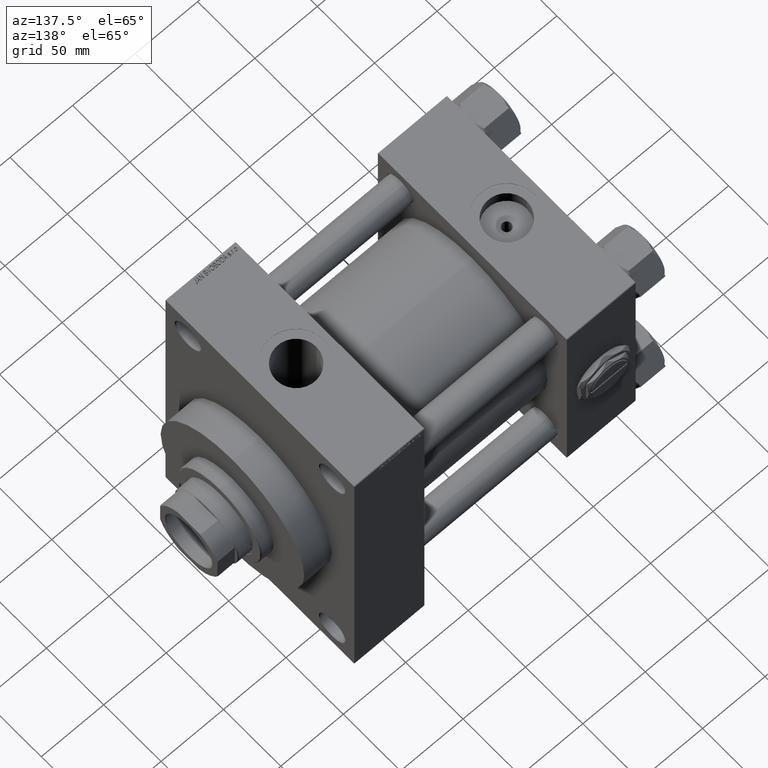
[diagram: clean part render]
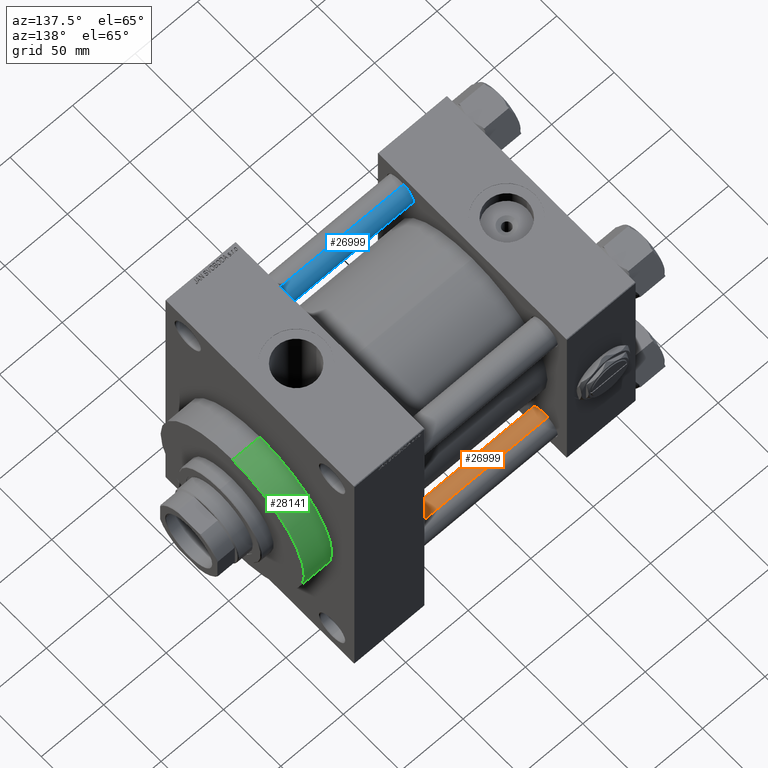
[diagram: same view with three faces highlighted in distinct colors, each labeled with its STEP entity id]
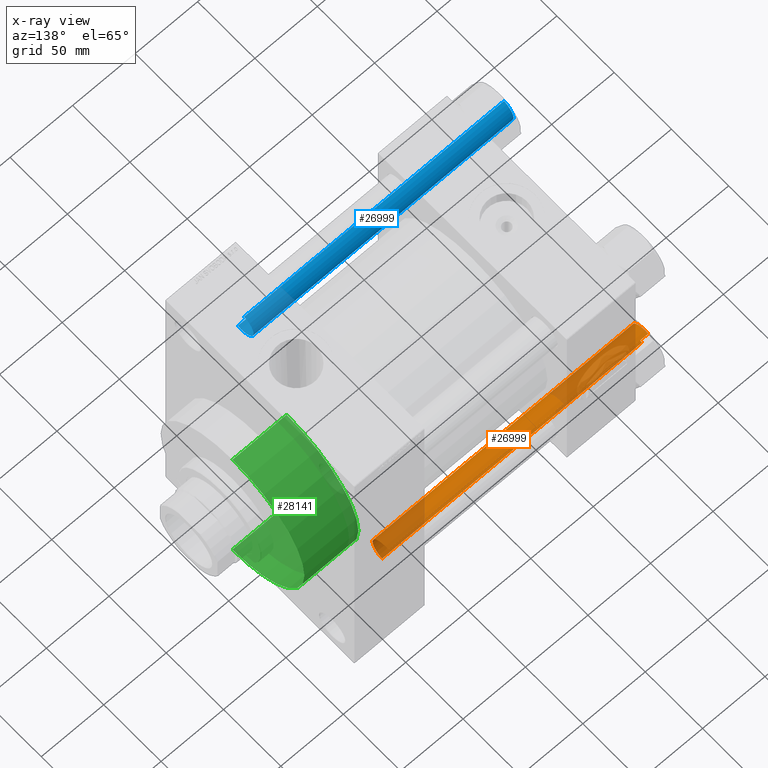
[diagram: x-ray of the same camera — body ghosted, the three highlighted faces saturated]
A machine part, auxiliary view with three faces highlighted in distinct colors.
The next image is the same camera in x-ray (body ghosted, the three faces saturated) — at least one of them is partly hidden behind the body in this view.
Their STEP definitions:

[orange] entity #26999 — the highlighted cylindrical surface (edge-blend (fillet) strip) has radius 11 mm, axis along (1, -0, 0).
#1297 = DIRECTION ( 'NONE',  ( -1.000000000000000000, 0.000000000000000000, 0.000000000000000000 ) ) ;
#5041 = CYLINDRICAL_SURFACE ( 'NONE', #41218, 11.00000000000000000 ) ;
#5774 = FACE_OUTER_BOUND ( 'NONE', #44086, .T. ) ;
#8872 = CARTESIAN_POINT ( 'NONE',  ( -11.00000000000000000, 0.000000000000000000, 209.0000000000000000 ) ) ;
#10002 = ORIENTED_EDGE ( 'NONE', *, *, #19165, .T. ) ;
#12109 = CIRCLE ( 'NONE', #16919, 11.00000000000000000 ) ;
#14855 = CARTESIAN_POINT ( 'NONE',  ( -11.00000000000000000, 0.000000000000000000, 0.5000000000000004441 ) ) ;
#16528 = ORIENTED_EDGE ( 'NONE', *, *, #24535, .T. ) ;
#16919 = AXIS2_PLACEMENT_3D ( 'NONE', #43043, #24028, #39298 ) ;
#17346 = VERTEX_POINT ( 'NONE', #47105 ) ;
#17841 = LINE ( 'NONE', #33110, #47646 ) ;
#17930 = CIRCLE ( 'NONE', #24305, 11.00000000000000000 ) ;
#19165 = EDGE_CURVE ( 'NONE', #27539, #45116, #27899, .T. ) ;
#20313 = CARTESIAN_POINT ( 'NONE',  ( 0.000000000000000000, 0.000000000000000000, 209.0000000000000000 ) ) ;
#20609 = DIRECTION ( 'NONE',  ( 1.000000000000000000, 0.000000000000000000, 0.000000000000000000 ) ) ;
#20726 = CARTESIAN_POINT ( 'NONE',  ( -11.00000000000000000, 0.000000000000000000, 208.5000000000000000 ) ) ;
#21099 = DIRECTION ( 'NONE',  ( -0.000000000000000000, -0.000000000000000000, -1.000000000000000000 ) ) ;
#24028 = DIRECTION ( 'NONE',  ( 0.000000000000000000, 0.000000000000000000, -1.000000000000000000 ) ) ;
#24141 = DIRECTION ( 'NONE',  ( -0.000000000000000000, -0.000000000000000000, -1.000000000000000000 ) ) ;
#24305 = AXIS2_PLACEMENT_3D ( 'NONE', #40619, #39884, #20609 ) ;
#24535 = EDGE_CURVE ( 'NONE', #45116, #17346, #17930, .T. ) ;
#26231 = VECTOR ( 'NONE', #24141, 1000.000000000000000 ) ;
#26298 = CARTESIAN_POINT ( 'NONE',  ( 11.00000000000000000, 1.347111479062088405E-15, 208.5000000000000000 ) ) ;
#26999 = ADVANCED_FACE ( 'NONE', ( #5774 ), #5041, .T. ) ;
#27539 = VERTEX_POINT ( 'NONE', #20726 ) ;
#27899 = LINE ( 'NONE', #8872, #26231 ) ;
#28584 = ORIENTED_EDGE ( 'NONE', *, *, #30850, .F. ) ;
#30850 = EDGE_CURVE ( 'NONE', #48364, #17346, #17841, .T. ) ;
#33110 = CARTESIAN_POINT ( 'NONE',  ( 11.00000000000000000, 1.347111479062088405E-15, 209.0000000000000000 ) ) ;
#38903 = ORIENTED_EDGE ( 'NONE', *, *, #48514, .T. ) ;
#39298 = DIRECTION ( 'NONE',  ( 1.000000000000000000, 0.000000000000000000, 0.000000000000000000 ) ) ;
#39884 = DIRECTION ( 'NONE',  ( -0.000000000000000000, -0.000000000000000000, 1.000000000000000000 ) ) ;
#40619 = CARTESIAN_POINT ( 'NONE',  ( 0.000000000000000000, 0.000000000000000000, 0.5000000000000004441 ) ) ;
#41218 = AXIS2_PLACEMENT_3D ( 'NONE', #20313, #43579, #1297 ) ;
#43043 = CARTESIAN_POINT ( 'NONE',  ( 0.000000000000000000, 0.000000000000000000, 208.5000000000000000 ) ) ;
#43579 = DIRECTION ( 'NONE',  ( -0.000000000000000000, -0.000000000000000000, -1.000000000000000000 ) ) ;
#44086 = EDGE_LOOP ( 'NONE', ( #28584, #38903, #10002, #16528 ) ) ;
#45116 = VERTEX_POINT ( 'NONE', #14855 ) ;
#47105 = CARTESIAN_POINT ( 'NONE',  ( 11.00000000000000000, 1.347111479062088405E-15, 0.5000000000000004441 ) ) ;
#47646 = VECTOR ( 'NONE', #21099, 1000.000000000000000 ) ;
#48364 = VERTEX_POINT ( 'NONE', #26298 ) ;
#48514 = EDGE_CURVE ( 'NONE', #48364, #27539, #12109, .T. ) ;

[blue] entity #26999 — the highlighted cylindrical surface (edge-blend (fillet) strip) has radius 11 mm, axis along (1, 0, 0).
#1297 = DIRECTION ( 'NONE',  ( -1.000000000000000000, 0.000000000000000000, 0.000000000000000000 ) ) ;
#5041 = CYLINDRICAL_SURFACE ( 'NONE', #41218, 11.00000000000000000 ) ;
#5774 = FACE_OUTER_BOUND ( 'NONE', #44086, .T. ) ;
#8872 = CARTESIAN_POINT ( 'NONE',  ( -11.00000000000000000, 0.000000000000000000, 209.0000000000000000 ) ) ;
#10002 = ORIENTED_EDGE ( 'NONE', *, *, #19165, .T. ) ;
#12109 = CIRCLE ( 'NONE', #16919, 11.00000000000000000 ) ;
#14855 = CARTESIAN_POINT ( 'NONE',  ( -11.00000000000000000, 0.000000000000000000, 0.5000000000000004441 ) ) ;
#16528 = ORIENTED_EDGE ( 'NONE', *, *, #24535, .T. ) ;
#16919 = AXIS2_PLACEMENT_3D ( 'NONE', #43043, #24028, #39298 ) ;
#17346 = VERTEX_POINT ( 'NONE', #47105 ) ;
#17841 = LINE ( 'NONE', #33110, #47646 ) ;
#17930 = CIRCLE ( 'NONE', #24305, 11.00000000000000000 ) ;
#19165 = EDGE_CURVE ( 'NONE', #27539, #45116, #27899, .T. ) ;
#20313 = CARTESIAN_POINT ( 'NONE',  ( 0.000000000000000000, 0.000000000000000000, 209.0000000000000000 ) ) ;
#20609 = DIRECTION ( 'NONE',  ( 1.000000000000000000, 0.000000000000000000, 0.000000000000000000 ) ) ;
#20726 = CARTESIAN_POINT ( 'NONE',  ( -11.00000000000000000, 0.000000000000000000, 208.5000000000000000 ) ) ;
#21099 = DIRECTION ( 'NONE',  ( -0.000000000000000000, -0.000000000000000000, -1.000000000000000000 ) ) ;
#24028 = DIRECTION ( 'NONE',  ( 0.000000000000000000, 0.000000000000000000, -1.000000000000000000 ) ) ;
#24141 = DIRECTION ( 'NONE',  ( -0.000000000000000000, -0.000000000000000000, -1.000000000000000000 ) ) ;
#24305 = AXIS2_PLACEMENT_3D ( 'NONE', #40619, #39884, #20609 ) ;
#24535 = EDGE_CURVE ( 'NONE', #45116, #17346, #17930, .T. ) ;
#26231 = VECTOR ( 'NONE', #24141, 1000.000000000000000 ) ;
#26298 = CARTESIAN_POINT ( 'NONE',  ( 11.00000000000000000, 1.347111479062088405E-15, 208.5000000000000000 ) ) ;
#26999 = ADVANCED_FACE ( 'NONE', ( #5774 ), #5041, .T. ) ;
#27539 = VERTEX_POINT ( 'NONE', #20726 ) ;
#27899 = LINE ( 'NONE', #8872, #26231 ) ;
#28584 = ORIENTED_EDGE ( 'NONE', *, *, #30850, .F. ) ;
#30850 = EDGE_CURVE ( 'NONE', #48364, #17346, #17841, .T. ) ;
#33110 = CARTESIAN_POINT ( 'NONE',  ( 11.00000000000000000, 1.347111479062088405E-15, 209.0000000000000000 ) ) ;
#38903 = ORIENTED_EDGE ( 'NONE', *, *, #48514, .T. ) ;
#39298 = DIRECTION ( 'NONE',  ( 1.000000000000000000, 0.000000000000000000, 0.000000000000000000 ) ) ;
#39884 = DIRECTION ( 'NONE',  ( -0.000000000000000000, -0.000000000000000000, 1.000000000000000000 ) ) ;
#40619 = CARTESIAN_POINT ( 'NONE',  ( 0.000000000000000000, 0.000000000000000000, 0.5000000000000004441 ) ) ;
#41218 = AXIS2_PLACEMENT_3D ( 'NONE', #20313, #43579, #1297 ) ;
#43043 = CARTESIAN_POINT ( 'NONE',  ( 0.000000000000000000, 0.000000000000000000, 208.5000000000000000 ) ) ;
#43579 = DIRECTION ( 'NONE',  ( -0.000000000000000000, -0.000000000000000000, -1.000000000000000000 ) ) ;
#44086 = EDGE_LOOP ( 'NONE', ( #28584, #38903, #10002, #16528 ) ) ;
#45116 = VERTEX_POINT ( 'NONE', #14855 ) ;
#47105 = CARTESIAN_POINT ( 'NONE',  ( 11.00000000000000000, 1.347111479062088405E-15, 0.5000000000000004441 ) ) ;
#47646 = VECTOR ( 'NONE', #21099, 1000.000000000000000 ) ;
#48364 = VERTEX_POINT ( 'NONE', #26298 ) ;
#48514 = EDGE_CURVE ( 'NONE', #48364, #27539, #12109, .T. ) ;

[green] entity #28141 — the highlighted cylindrical surface (partial cylindrical patch) has radius 62.75 mm, axis along (-1, 0, 0).
#80 = AXIS2_PLACEMENT_3D ( 'NONE', #2186, #17465, #22871 ) ;
#441 = AXIS2_PLACEMENT_3D ( 'NONE', #1656, #46970, #39450 ) ;
#1656 = CARTESIAN_POINT ( 'NONE',  ( 0.000000000000000000, 0.000000000000000000, 0.000000000000000000 ) ) ;
#1867 = CARTESIAN_POINT ( 'NONE',  ( 62.75000000000000000, 7.684658664649641591E-15, 43.25999999999999801 ) ) ;
#2152 = ORIENTED_EDGE ( 'NONE', *, *, #48783, .F. ) ;
#2186 = CARTESIAN_POINT ( 'NONE',  ( 0.000000000000000000, 0.000000000000000000, 43.25999999999999801 ) ) ;
#4357 = VERTEX_POINT ( 'NONE', #47673 ) ;
#6060 = CARTESIAN_POINT ( 'NONE',  ( 0.000000000000000000, 0.000000000000000000, 43.25999999999999801 ) ) ;
#8748 = VECTOR ( 'NONE', #18810, 1000.000000000000000 ) ;
#12809 = VERTEX_POINT ( 'NONE', #42800 ) ;
#12960 = VERTEX_POINT ( 'NONE', #34015 ) ;
#13729 = VECTOR ( 'NONE', #20659, 1000.000000000000000 ) ;
#14077 = LINE ( 'NONE', #37589, #8748 ) ;
#17465 = DIRECTION ( 'NONE',  ( 0.000000000000000000, 0.000000000000000000, 1.000000000000000000 ) ) ;
#18810 = DIRECTION ( 'NONE',  ( -0.000000000000000000, -0.000000000000000000, -1.000000000000000000 ) ) ;
#20659 = DIRECTION ( 'NONE',  ( -0.000000000000000000, -0.000000000000000000, -1.000000000000000000 ) ) ;
#22418 = ORIENTED_EDGE ( 'NONE', *, *, #30413, .T. ) ;
#22871 = DIRECTION ( 'NONE',  ( 1.000000000000000000, 0.000000000000000000, 0.000000000000000000 ) ) ;
#23578 = CARTESIAN_POINT ( 'NONE',  ( 62.75000000000000000, 7.684658664649641591E-15, 43.25999999999999801 ) ) ;
#25091 = FACE_OUTER_BOUND ( 'NONE', #29030, .T. ) ;
#28141 = ADVANCED_FACE ( 'NONE', ( #25091 ), #40364, .T. ) ;
#28158 = LINE ( 'NONE', #1867, #13729 ) ;
#29030 = EDGE_LOOP ( 'NONE', ( #2152, #36936, #48871, #22418 ) ) ;
#30413 = EDGE_CURVE ( 'NONE', #12809, #12960, #45208, .T. ) ;
#30842 = AXIS2_PLACEMENT_3D ( 'NONE', #6060, #35378, #46899 ) ;
#34015 = CARTESIAN_POINT ( 'NONE',  ( 62.75000000000000000, 7.684658664649641591E-15, 0.000000000000000000 ) ) ;
#35378 = DIRECTION ( 'NONE',  ( -0.000000000000000000, -0.000000000000000000, -1.000000000000000000 ) ) ;
#36936 = ORIENTED_EDGE ( 'NONE', *, *, #43105, .F. ) ;
#37589 = CARTESIAN_POINT ( 'NONE',  ( -62.75000000000000000, 0.000000000000000000, 43.25999999999999801 ) ) ;
#39450 = DIRECTION ( 'NONE',  ( 1.000000000000000000, 0.000000000000000000, 0.000000000000000000 ) ) ;
#40364 = CYLINDRICAL_SURFACE ( 'NONE', #30842, 62.75000000000000000 ) ;
#41356 = VERTEX_POINT ( 'NONE', #23578 ) ;
#42800 = CARTESIAN_POINT ( 'NONE',  ( -62.75000000000000000, 0.000000000000000000, 0.000000000000000000 ) ) ;
#43105 = EDGE_CURVE ( 'NONE', #4357, #41356, #43234, .T. ) ;
#43234 = CIRCLE ( 'NONE', #80, 62.75000000000000000 ) ;
#43498 = EDGE_CURVE ( 'NONE', #4357, #12809, #14077, .T. ) ;
#45208 = CIRCLE ( 'NONE', #441, 62.75000000000000000 ) ;
#46899 = DIRECTION ( 'NONE',  ( -1.000000000000000000, 0.000000000000000000, 0.000000000000000000 ) ) ;
#46970 = DIRECTION ( 'NONE',  ( 0.000000000000000000, 0.000000000000000000, 1.000000000000000000 ) ) ;
#47673 = CARTESIAN_POINT ( 'NONE',  ( -62.75000000000000000, 0.000000000000000000, 43.25999999999999801 ) ) ;
#48783 = EDGE_CURVE ( 'NONE', #41356, #12960, #28158, .T. ) ;
#48871 = ORIENTED_EDGE ( 'NONE', *, *, #43498, .T. ) ;